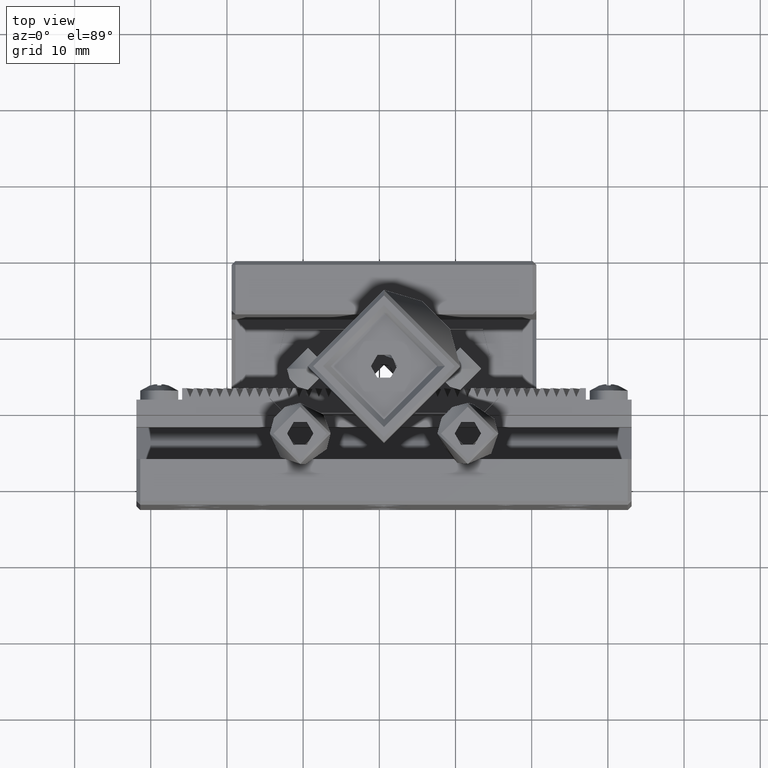
[diagram: clean part render]
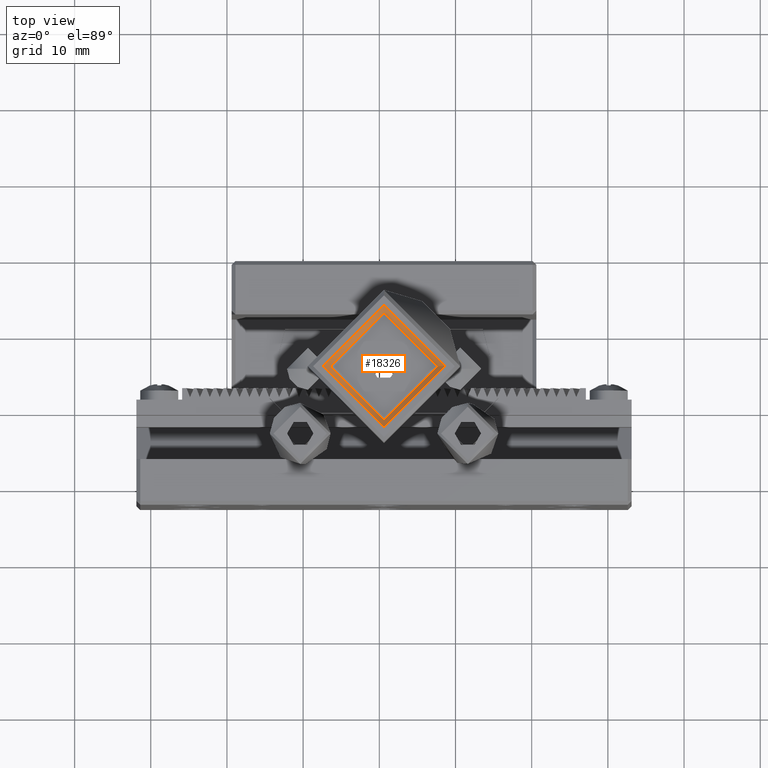
[diagram: same view with one face highlighted and labeled with its STEP entity id]
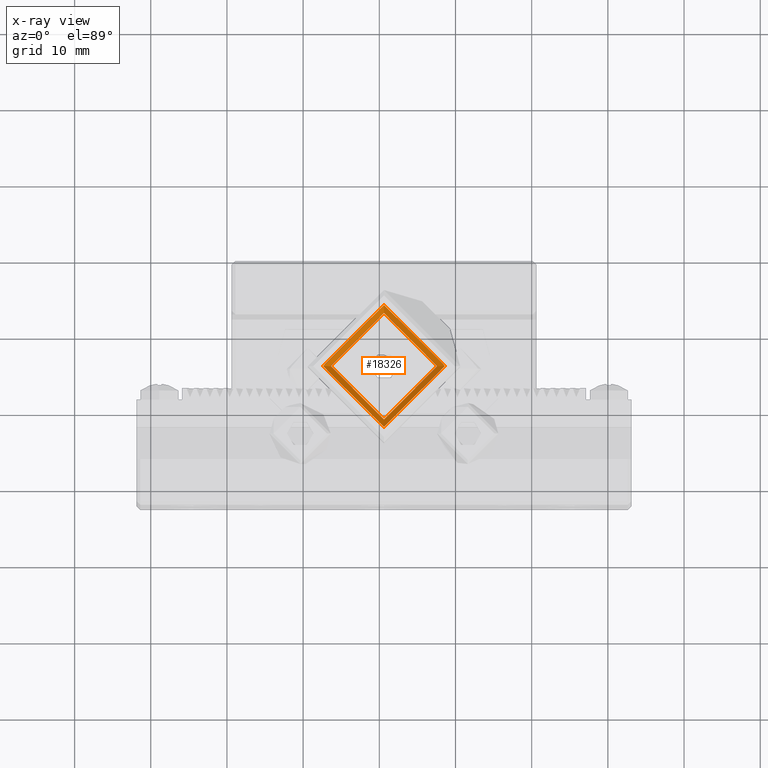
[diagram: x-ray of the same camera — body ghosted, the highlighted face saturated]
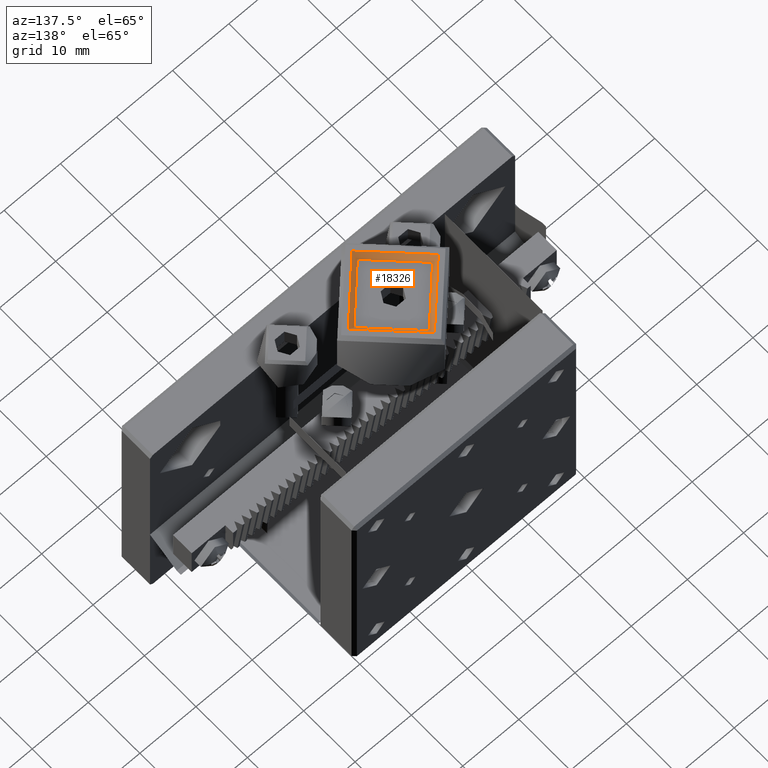
[diagram: same view with one face highlighted and labeled with its STEP entity id]
A machine part, top view. The second image highlights one B-rep face of the part: STEP entity #18326.
The next image is the same camera in x-ray: the body ghosted, the highlighted face saturated — about 0% of this face is hidden behind the body in this view.
A second angle (auxiliary view) of the same face is appended — the face is thin or edge-on in the first view.
In plain terms, the highlighted conical surface has half-angle 45 deg.
Its self-contained STEP definition (entity closure, byte-faithful):
#513 = DIRECTION ( 'NONE',  ( 1.000000000000000000, 0.000000000000000000, 0.000000000000000000 ) ) ;
#997 = ORIENTED_EDGE ( 'NONE', *, *, #4321, .T. ) ;
#3655 = EDGE_LOOP ( 'NONE', ( #997 ) ) ;
#4048 = CARTESIAN_POINT ( 'NONE',  ( 27.61330177514791728, 25.35204733727815807, 42.00000000000009237 ) ) ;
#4321 = EDGE_CURVE ( 'NONE', #15468, #15468, #13275, .T. ) ;
#4480 = CARTESIAN_POINT ( 'NONE',  ( 20.61330177514791728, 25.35204733727815807, 43.00000000000007816 ) ) ;
#6054 = CONICAL_SURFACE ( 'NONE', #11227, 8.000000000000000000, 0.7853981633974552734 ) ;
#6447 = DIRECTION ( 'NONE',  ( -4.336808689942014285E-16, 0.000000000000000000, 1.000000000000000000 ) ) ;
#7116 = EDGE_LOOP ( 'NONE', ( #8447 ) ) ;
#7523 = CARTESIAN_POINT ( 'NONE',  ( 20.61330177514791728, 25.35204733727815807, 42.00000000000009237 ) ) ;
#8170 = DIRECTION ( 'NONE',  ( 1.000000000000000000, 0.000000000000000000, 0.000000000000000000 ) ) ;
#8447 = ORIENTED_EDGE ( 'NONE', *, *, #11919, .F. ) ;
#10554 = DIRECTION ( 'NONE',  ( -4.336808689942014285E-16, 0.000000000000000000, 1.000000000000000000 ) ) ;
#11227 = AXIS2_PLACEMENT_3D ( 'NONE', #4480, #6447, #8170 ) ;
#11919 = EDGE_CURVE ( 'NONE', #17363, #17363, #15975, .T. ) ;
#13275 = CIRCLE ( 'NONE', #15006, 7.999999999999996447 ) ;
#14664 = FACE_OUTER_BOUND ( 'NONE', #3655, .T. ) ;
#14944 = AXIS2_PLACEMENT_3D ( 'NONE', #7523, #10554, #513 ) ;
#15006 = AXIS2_PLACEMENT_3D ( 'NONE', #16543, #15339, #19914 ) ;
#15339 = DIRECTION ( 'NONE',  ( -4.336808689942014285E-16, 0.000000000000000000, 1.000000000000000000 ) ) ;
#15468 = VERTEX_POINT ( 'NONE', #18834 ) ;
#15975 = CIRCLE ( 'NONE', #14944, 6.999999999999999112 ) ;
#16543 = CARTESIAN_POINT ( 'NONE',  ( 20.61330177514791728, 25.35204733727815807, 43.00000000000007816 ) ) ;
#17363 = VERTEX_POINT ( 'NONE', #4048 ) ;
#18326 = ADVANCED_FACE ( 'NONE', ( #14664, #21283 ), #6054, .F. ) ;
#18834 = CARTESIAN_POINT ( 'NONE',  ( 28.61330177514791373, 25.35204733727815807, 43.00000000000007816 ) ) ;
#19914 = DIRECTION ( 'NONE',  ( 1.000000000000000000, 0.000000000000000000, 0.000000000000000000 ) ) ;
#21283 = FACE_BOUND ( 'NONE', #7116, .T. ) ;